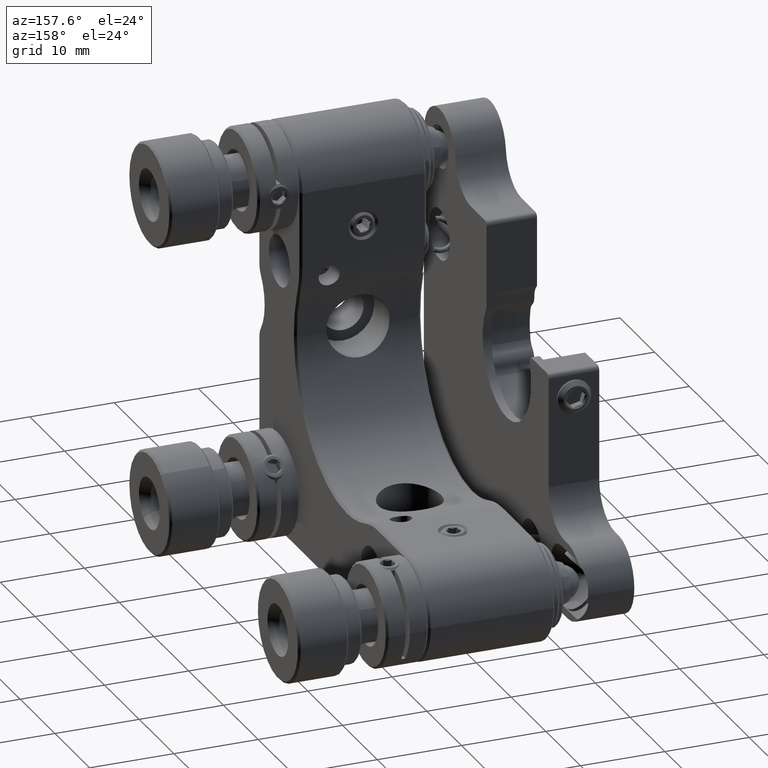
[diagram: clean part render]
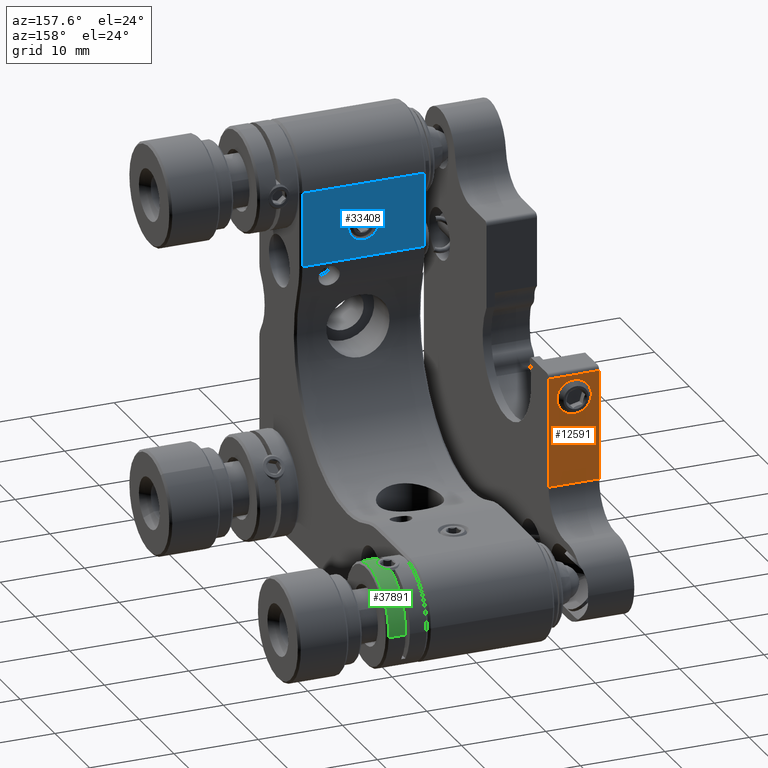
[diagram: same view with three faces highlighted in distinct colors, each labeled with its STEP entity id]
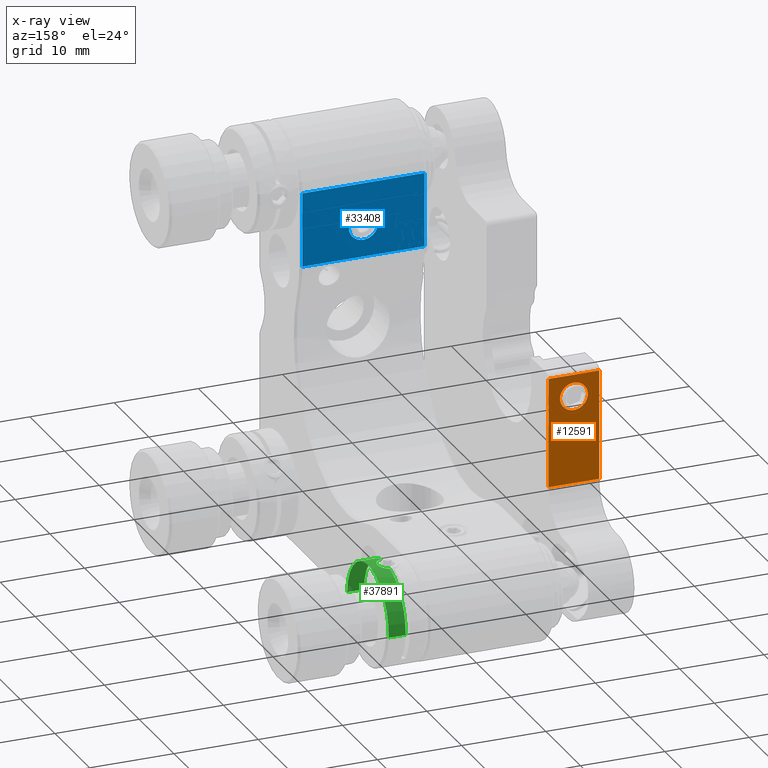
[diagram: x-ray of the same camera — body ghosted, the three highlighted faces saturated]
A machine part, auxiliary view with three faces highlighted in distinct colors.
The next image is the same camera in x-ray (body ghosted, the three faces saturated) — at least one of them is partly hidden behind the body in this view.
Their STEP definitions:

[orange] entity #12591 — the highlighted planar face has unit normal (0, -1, 0).
#287 = VECTOR ( 'NONE', #21377, 1000.000000000000000 ) ;
#1308 = CARTESIAN_POINT ( 'NONE',  ( -14.50000000000000000, 12.89999999999999858, 2.549999999999983391 ) ) ;
#1470 = EDGE_CURVE ( 'NONE', #10336, #3576, #37857, .T. ) ;
#1627 = CARTESIAN_POINT ( 'NONE',  ( -11.50000000000000000, 12.90000000000000036, 6.999999999999988454 ) ) ;
#1797 = DIRECTION ( 'NONE',  ( 1.000000000000000000, -0.0000000000000000000, -0.0000000000000000000 ) ) ;
#1933 = ORIENTED_EDGE ( 'NONE', *, *, #41773, .F. ) ;
#2061 = CIRCLE ( 'NONE', #19376, 1.649999999999998357 ) ;
#2361 = LINE ( 'NONE', #29251, #35845 ) ;
#3576 = VERTEX_POINT ( 'NONE', #28871 ) ;
#3621 = ORIENTED_EDGE ( 'NONE', *, *, #1470, .T. ) ;
#4511 = EDGE_CURVE ( 'NONE', #10336, #15299, #2361, .T. ) ;
#8329 = CARTESIAN_POINT ( 'NONE',  ( -17.50000000000000000, 12.90000000000000036, 6.999999999999988454 ) ) ;
#8748 = VECTOR ( 'NONE', #21770, 1000.000000000000000 ) ;
#9956 = CARTESIAN_POINT ( 'NONE',  ( -14.50000000000000000, 12.89999999999999858, 0.8999999999999849232 ) ) ;
#10336 = VERTEX_POINT ( 'NONE', #29155 ) ;
#11602 = PLANE ( 'NONE',  #21400 ) ;
#12196 = ORIENTED_EDGE ( 'NONE', *, *, #4511, .F. ) ;
#12591 = ADVANCED_FACE ( 'NONE', ( #41539, #41107 ), #11602, .F. ) ;
#14875 = DIRECTION ( 'NONE',  ( 0.0000000000000000000, -1.652117596168388742E-16, -1.000000000000000000 ) ) ;
#15085 = DIRECTION ( 'NONE',  ( 0.0000000000000000000, -1.000000000000000000, 1.652117596168388742E-16 ) ) ;
#15299 = VERTEX_POINT ( 'NONE', #38242 ) ;
#17121 = DIRECTION ( 'NONE',  ( -0.0000000000000000000, 1.000000000000000000, -1.982541115402065110E-16 ) ) ;
#18183 = EDGE_LOOP ( 'NONE', ( #1933, #25839 ) ) ;
#18249 = EDGE_CURVE ( 'NONE', #26513, #15299, #25447, .T. ) ;
#18641 = DIRECTION ( 'NONE',  ( -0.0000000000000000000, 1.652117596168388989E-16, 1.000000000000000000 ) ) ;
#18932 = DIRECTION ( 'NONE',  ( 0.0000000000000000000, 0.0000000000000000000, 1.000000000000000000 ) ) ;
#19376 = AXIS2_PLACEMENT_3D ( 'NONE', #9956, #17121, #20572 ) ;
#20572 = DIRECTION ( 'NONE',  ( 0.0000000000000000000, 0.0000000000000000000, 1.000000000000000000 ) ) ;
#21377 = DIRECTION ( 'NONE',  ( -1.000000000000000000, 0.0000000000000000000, 0.0000000000000000000 ) ) ;
#21400 = AXIS2_PLACEMENT_3D ( 'NONE', #1627, #15085, #14875 ) ;
#21744 = VERTEX_POINT ( 'NONE', #1308 ) ;
#21770 = DIRECTION ( 'NONE',  ( -0.0000000000000000000, 1.652117596168388989E-16, 1.000000000000000000 ) ) ;
#22692 = CARTESIAN_POINT ( 'NONE',  ( -14.50000000000000000, 12.89999999999999858, -0.7500000000000131006 ) ) ;
#23986 = CARTESIAN_POINT ( 'NONE',  ( -17.50000000000000000, 12.89999999999999680, -9.499999999999992895 ) ) ;
#24808 = CARTESIAN_POINT ( 'NONE',  ( -11.50000000000000000, 12.90000000000000036, 3.499999999999989786 ) ) ;
#25429 = AXIS2_PLACEMENT_3D ( 'NONE', #29518, #35835, #18932 ) ;
#25447 = LINE ( 'NONE', #24808, #38824 ) ;
#25839 = ORIENTED_EDGE ( 'NONE', *, *, #32857, .F. ) ;
#26513 = VERTEX_POINT ( 'NONE', #37216 ) ;
#26997 = ORIENTED_EDGE ( 'NONE', *, *, #18249, .T. ) ;
#28185 = ORIENTED_EDGE ( 'NONE', *, *, #35275, .T. ) ;
#28871 = CARTESIAN_POINT ( 'NONE',  ( -17.50000000000000000, 12.89999999999999680, -9.499999999999991118 ) ) ;
#29155 = CARTESIAN_POINT ( 'NONE',  ( -11.50000000000000000, 12.89999999999999680, -9.499999999999991118 ) ) ;
#29251 = CARTESIAN_POINT ( 'NONE',  ( -11.50000000000000000, 12.90000000000000036, 6.999999999999988454 ) ) ;
#29518 = CARTESIAN_POINT ( 'NONE',  ( -14.50000000000000000, 12.89999999999999858, 0.8999999999999849232 ) ) ;
#29830 = VERTEX_POINT ( 'NONE', #22692 ) ;
#32857 = EDGE_CURVE ( 'NONE', #29830, #21744, #2061, .T. ) ;
#35110 = CIRCLE ( 'NONE', #25429, 1.649999999999998357 ) ;
#35212 = LINE ( 'NONE', #8329, #8748 ) ;
#35275 = EDGE_CURVE ( 'NONE', #3576, #26513, #35212, .T. ) ;
#35835 = DIRECTION ( 'NONE',  ( -0.0000000000000000000, 1.000000000000000000, -1.982541115402065110E-16 ) ) ;
#35845 = VECTOR ( 'NONE', #18641, 1000.000000000000000 ) ;
#37216 = CARTESIAN_POINT ( 'NONE',  ( -17.50000000000000000, 12.90000000000000036, 3.499999999999989786 ) ) ;
#37857 = LINE ( 'NONE', #23986, #287 ) ;
#38242 = CARTESIAN_POINT ( 'NONE',  ( -11.50000000000000000, 12.90000000000000036, 3.499999999999989786 ) ) ;
#38765 = EDGE_LOOP ( 'NONE', ( #12196, #3621, #28185, #26997 ) ) ;
#38824 = VECTOR ( 'NONE', #1797, 1000.000000000000000 ) ;
#41107 = FACE_OUTER_BOUND ( 'NONE', #38765, .T. ) ;
#41539 = FACE_BOUND ( 'NONE', #18183, .T. ) ;
#41773 = EDGE_CURVE ( 'NONE', #21744, #29830, #35110, .T. ) ;

[blue] entity #33408 — the highlighted planar face has unit normal (0, -1, -0).
#834 = ORIENTED_EDGE ( 'NONE', *, *, #36471, .F. ) ;
#1588 = CARTESIAN_POINT ( 'NONE',  ( 0.0000000000000000000, -12.49999999999999289, 15.20000000000000462 ) ) ;
#1690 = CARTESIAN_POINT ( 'NONE',  ( -7.500000000000000000, -12.50000000000000355, 29.50000000000000711 ) ) ;
#2007 = VERTEX_POINT ( 'NONE', #4299 ) ;
#4299 = CARTESIAN_POINT ( 'NONE',  ( -7.249999999999992895, -12.50000000000000000, 18.50000000000000711 ) ) ;
#4508 = EDGE_CURVE ( 'NONE', #19003, #27932, #19068, .T. ) ;
#4526 = CARTESIAN_POINT ( 'NONE',  ( -7.500000000000000000, -12.50000000000000000, 18.50000000000000711 ) ) ;
#5355 = VECTOR ( 'NONE', #16045, 1000.000000000000000 ) ;
#6299 = ORIENTED_EDGE ( 'NONE', *, *, #20016, .T. ) ;
#6303 = DIRECTION ( 'NONE',  ( 0.0000000000000000000, 0.0000000000000000000, 1.000000000000000000 ) ) ;
#6364 = EDGE_LOOP ( 'NONE', ( #834, #33124 ) ) ;
#8211 = DIRECTION ( 'NONE',  ( 1.000000000000000000, -0.0000000000000000000, -0.0000000000000000000 ) ) ;
#9205 = CARTESIAN_POINT ( 'NONE',  ( 2.143131898507868051E-16, -12.49999999999999289, 11.70000000000000639 ) ) ;
#9701 = AXIS2_PLACEMENT_3D ( 'NONE', #1690, #14936, #28154 ) ;
#10766 = CARTESIAN_POINT ( 'NONE',  ( -7.500000000000000000, -12.49999999999999645, 9.699999999999986855 ) ) ;
#11201 = LINE ( 'NONE', #10766, #21423 ) ;
#11261 = EDGE_CURVE ( 'NONE', #41929, #2007, #12821, .T. ) ;
#11891 = PLANE ( 'NONE',  #9701 ) ;
#12821 = LINE ( 'NONE', #28877, #21332 ) ;
#14936 = DIRECTION ( 'NONE',  ( 0.0000000000000000000, -1.000000000000000000, -3.174375978451675442E-16 ) ) ;
#15029 = VERTEX_POINT ( 'NONE', #1588 ) ;
#16045 = DIRECTION ( 'NONE',  ( 0.0000000000000000000, 3.174375978451675442E-16, -1.000000000000000000 ) ) ;
#16303 = ORIENTED_EDGE ( 'NONE', *, *, #33933, .T. ) ;
#17592 = ORIENTED_EDGE ( 'NONE', *, *, #4508, .T. ) ;
#19003 = VERTEX_POINT ( 'NONE', #20425 ) ;
#19068 = LINE ( 'NONE', #32511, #5355 ) ;
#19506 = DIRECTION ( 'NONE',  ( -0.0000000000000000000, 1.000000000000000000, -1.028954994759794491E-16 ) ) ;
#20016 = EDGE_CURVE ( 'NONE', #2007, #19003, #24699, .T. ) ;
#20204 = CARTESIAN_POINT ( 'NONE',  ( -7.249999999999992895, -12.49999999999999645, 9.699999999999986855 ) ) ;
#20306 = DIRECTION ( 'NONE',  ( -1.000000000000000000, -0.0000000000000000000, -0.0000000000000000000 ) ) ;
#20425 = CARTESIAN_POINT ( 'NONE',  ( 7.249999999999985789, -12.50000000000000000, 18.50000000000000711 ) ) ;
#21332 = VECTOR ( 'NONE', #32576, 1000.000000000000000 ) ;
#21423 = VECTOR ( 'NONE', #20306, 1000.000000000000000 ) ;
#22364 = CARTESIAN_POINT ( 'NONE',  ( 0.0000000000000000000, -12.49999999999999289, 13.45000000000000462 ) ) ;
#23296 = CIRCLE ( 'NONE', #41329, 1.749999999999999778 ) ;
#24699 = LINE ( 'NONE', #4526, #25735 ) ;
#25624 = EDGE_CURVE ( 'NONE', #37918, #15029, #29768, .T. ) ;
#25735 = VECTOR ( 'NONE', #8211, 1000.000000000000000 ) ;
#27814 = ORIENTED_EDGE ( 'NONE', *, *, #11261, .T. ) ;
#27932 = VERTEX_POINT ( 'NONE', #29946 ) ;
#28154 = DIRECTION ( 'NONE',  ( 0.0000000000000000000, 3.174375978451675442E-16, -1.000000000000000000 ) ) ;
#28585 = FACE_BOUND ( 'NONE', #6364, .T. ) ;
#28877 = CARTESIAN_POINT ( 'NONE',  ( -7.249999999999992895, -12.50000000000000355, 29.50000000000000711 ) ) ;
#29768 = CIRCLE ( 'NONE', #34642, 1.749999999999999778 ) ;
#29946 = CARTESIAN_POINT ( 'NONE',  ( 7.249999999999985789, -12.49999999999999645, 9.699999999999986855 ) ) ;
#32511 = CARTESIAN_POINT ( 'NONE',  ( 7.249999999999985789, -12.49999999999999645, 9.699999999999986855 ) ) ;
#32576 = DIRECTION ( 'NONE',  ( 0.0000000000000000000, -3.174375978451675442E-16, 1.000000000000000000 ) ) ;
#33124 = ORIENTED_EDGE ( 'NONE', *, *, #25624, .F. ) ;
#33159 = DIRECTION ( 'NONE',  ( 0.0000000000000000000, 0.0000000000000000000, 1.000000000000000000 ) ) ;
#33408 = ADVANCED_FACE ( 'NONE', ( #28585, #41817 ), #11891, .F. ) ;
#33933 = EDGE_CURVE ( 'NONE', #27932, #41929, #11201, .T. ) ;
#34642 = AXIS2_PLACEMENT_3D ( 'NONE', #36410, #19506, #33159 ) ;
#35385 = EDGE_LOOP ( 'NONE', ( #16303, #27814, #6299, #17592 ) ) ;
#36410 = CARTESIAN_POINT ( 'NONE',  ( 0.0000000000000000000, -12.49999999999999289, 13.45000000000000462 ) ) ;
#36471 = EDGE_CURVE ( 'NONE', #15029, #37918, #23296, .T. ) ;
#37918 = VERTEX_POINT ( 'NONE', #9205 ) ;
#41329 = AXIS2_PLACEMENT_3D ( 'NONE', #22364, #41893, #6303 ) ;
#41817 = FACE_OUTER_BOUND ( 'NONE', #35385, .T. ) ;
#41893 = DIRECTION ( 'NONE',  ( -0.0000000000000000000, 1.000000000000000000, -1.028954994759794491E-16 ) ) ;
#41929 = VERTEX_POINT ( 'NONE', #20204 ) ;

[green] entity #37891 — the highlighted cylindrical surface (partial cylindrical patch) has radius 6 mm, axis along (1, -0, -0).
#1036 = VERTEX_POINT ( 'NONE', #3101 ) ;
#1340 = AXIS2_PLACEMENT_3D ( 'NONE', #20593, #34047, #33614 ) ;
#2047 = LINE ( 'NONE', #38066, #14202 ) ;
#2916 = DIRECTION ( 'NONE',  ( 1.000000000000000000, -4.437342591868191405E-31, -1.224646799147351482E-16 ) ) ;
#3101 = CARTESIAN_POINT ( 'NONE',  ( 12.24999999999999289, 12.50548878036686595, -18.24341621701169913 ) ) ;
#3586 = DIRECTION ( 'NONE',  ( 0.0000000000000000000, 0.9990852032721875275, -0.04276396383138106327 ) ) ;
#4542 = CARTESIAN_POINT ( 'NONE',  ( 11.12845912252944380, 19.31160096745149346, -12.55359495892243338 ) ) ;
#5252 = ORIENTED_EDGE ( 'NONE', *, *, #26622, .T. ) ;
#5803 = EDGE_CURVE ( 'NONE', #1036, #26242, #37014, .T. ) ;
#6595 = EDGE_CURVE ( 'NONE', #39825, #26242, #2047, .T. ) ;
#6642 = CARTESIAN_POINT ( 'NONE',  ( 10.24999999999999112, 17.52755693530806624, -12.57932820653493522 ) ) ;
#8199 = AXIS2_PLACEMENT_3D ( 'NONE', #39708, #26693, #30159 ) ;
#8828 = ORIENTED_EDGE ( 'NONE', *, *, #6595, .F. ) ;
#10270 = CIRCLE ( 'NONE', #8199, 6.000000000000000888 ) ;
#10865 = LINE ( 'NONE', #24101, #27057 ) ;
#11060 = CARTESIAN_POINT ( 'NONE',  ( 10.52508023223002986, 17.60970982873624635, -12.56594830372557503 ) ) ;
#11477 = CARTESIAN_POINT ( 'NONE',  ( 10.76836441059769989, 17.75780088465613105, -12.54561282781435239 ) ) ;
#13320 = EDGE_CURVE ( 'NONE', #39825, #37781, #14503, .T. ) ;
#13347 = CARTESIAN_POINT ( 'NONE',  ( 12.24999999999999289, 18.49999999999999289, -18.49999999999998224 ) ) ;
#13368 = CARTESIAN_POINT ( 'NONE',  ( 12.24999999999999289, 24.49451121963312161, -18.75658378298826534 ) ) ;
#14202 = VECTOR ( 'NONE', #22430, 1000.000000000000000 ) ;
#14503 = CIRCLE ( 'NONE', #1340, 6.000000000000001776 ) ;
#14959 = CARTESIAN_POINT ( 'NONE',  ( 10.24999999999999112, 17.52755693530806624, -12.57932820653493522 ) ) ;
#15545 = EDGE_CURVE ( 'NONE', #33760, #37781, #41865, .T. ) ;
#15953 = CARTESIAN_POINT ( 'NONE',  ( 10.24999999999999112, 19.97480589288971231, -12.68407809730065594 ) ) ;
#17786 = CARTESIAN_POINT ( 'NONE',  ( 10.39071141842000756, 19.94636568683540290, -12.67686620825096000 ) ) ;
#18494 = EDGE_LOOP ( 'NONE', ( #22937, #5252, #28914, #8828, #26086, #36596 ) ) ;
#18978 = CARTESIAN_POINT ( 'NONE',  ( -9.100000000000003197, 18.49999999999999289, -18.49999999999997868 ) ) ;
#19395 = FACE_OUTER_BOUND ( 'NONE', #18494, .T. ) ;
#20593 = CARTESIAN_POINT ( 'NONE',  ( 10.24999999999999112, 18.49999999999999289, -18.49999999999998224 ) ) ;
#21260 = DIRECTION ( 'NONE',  ( 1.000000000000000000, -4.437342591868191405E-31, -1.224646799147351482E-16 ) ) ;
#21402 = EDGE_CURVE ( 'NONE', #33760, #42064, #10270, .T. ) ;
#22430 = DIRECTION ( 'NONE',  ( 1.000000000000000000, -4.437342591868191405E-31, -1.224646799147351482E-16 ) ) ;
#22676 = AXIS2_PLACEMENT_3D ( 'NONE', #18978, #2916, #29565 ) ;
#22937 = ORIENTED_EDGE ( 'NONE', *, *, #21402, .T. ) ;
#23865 = AXIS2_PLACEMENT_3D ( 'NONE', #13347, #32874, #3586 ) ;
#24101 = CARTESIAN_POINT ( 'NONE',  ( -9.100000000000003197, 12.50548878036686595, -18.24341621701169203 ) ) ;
#26086 = ORIENTED_EDGE ( 'NONE', *, *, #13320, .T. ) ;
#26242 = VERTEX_POINT ( 'NONE', #13368 ) ;
#26622 = EDGE_CURVE ( 'NONE', #42064, #1036, #10865, .T. ) ;
#26693 = DIRECTION ( 'NONE',  ( 1.000000000000000000, -4.437342591868191405E-31, -1.224646799147351482E-16 ) ) ;
#27057 = VECTOR ( 'NONE', #21260, 1000.000000000000000 ) ;
#27543 = CARTESIAN_POINT ( 'NONE',  ( 11.25016883163388215, 18.46878916769270518, -12.49313506746005054 ) ) ;
#27764 = CARTESIAN_POINT ( 'NONE',  ( 11.05812742061445597, 19.43505188033018882, -12.57225422385431735 ) ) ;
#28914 = ORIENTED_EDGE ( 'NONE', *, *, #5803, .T. ) ;
#29565 = DIRECTION ( 'NONE',  ( 0.0000000000000000000, 0.9990852032721875275, -0.04276396383138106327 ) ) ;
#30159 = DIRECTION ( 'NONE',  ( 0.0000000000000000000, -0.9990852032721876386, 0.04276396383137991836 ) ) ;
#30803 = CARTESIAN_POINT ( 'NONE',  ( 11.24991526295638700, 18.90157762636242467, -12.51171263895401076 ) ) ;
#31435 = CARTESIAN_POINT ( 'NONE',  ( 11.22537558535590563, 19.04182613819259373, -12.52297285610210587 ) ) ;
#32634 = CYLINDRICAL_SURFACE ( 'NONE', #22676, 6.000000000000003553 ) ;
#32874 = DIRECTION ( 'NONE',  ( -1.000000000000000000, 4.437342591868191405E-31, 1.224646799147351482E-16 ) ) ;
#33614 = DIRECTION ( 'NONE',  ( 0.0000000000000000000, -0.9990852032721875275, 0.04276396383138107715 ) ) ;
#33760 = VERTEX_POINT ( 'NONE', #6642 ) ;
#34047 = DIRECTION ( 'NONE',  ( 1.000000000000000000, -4.437342591868191405E-31, -1.224646799147351482E-16 ) ) ;
#34259 = CARTESIAN_POINT ( 'NONE',  ( 11.14748082381498584, 18.18470335810425809, -12.50418347430428767 ) ) ;
#36463 = CARTESIAN_POINT ( 'NONE',  ( 10.24999999999999112, 12.50548878036686773, -18.24341621701169558 ) ) ;
#36596 = ORIENTED_EDGE ( 'NONE', *, *, #15545, .F. ) ;
#37014 = CIRCLE ( 'NONE', #23865, 6.000000000000003553 ) ;
#37304 = CARTESIAN_POINT ( 'NONE',  ( 10.38960250453964207, 17.55628120717163654, -12.57461037721818897 ) ) ;
#37522 = CARTESIAN_POINT ( 'NONE',  ( 10.87767375705390016, 17.85322538647672630, -12.53393014247644466 ) ) ;
#37727 = CARTESIAN_POINT ( 'NONE',  ( 10.76905514345796533, 19.74789800972026654, -12.63072302242346012 ) ) ;
#37781 = VERTEX_POINT ( 'NONE', #15953 ) ;
#37891 = ADVANCED_FACE ( 'NONE', ( #19395 ), #32634, .T. ) ;
#37943 = CARTESIAN_POINT ( 'NONE',  ( 10.87685377308227608, 19.65516995984618376, -12.61119075114578258 ) ) ;
#38066 = CARTESIAN_POINT ( 'NONE',  ( -9.100000000000003197, 24.49451121963312161, -18.75658378298826534 ) ) ;
#39708 = CARTESIAN_POINT ( 'NONE',  ( 10.24999999999999112, 18.49999999999999289, -18.49999999999998224 ) ) ;
#39825 = VERTEX_POINT ( 'NONE', #41858 ) ;
#40773 = CARTESIAN_POINT ( 'NONE',  ( 10.52404206932773967, 19.89469199896712581, -12.66386292911219691 ) ) ;
#40991 = CARTESIAN_POINT ( 'NONE',  ( 10.24999999999999112, 19.97480589288971231, -12.68407809730065594 ) ) ;
#41858 = CARTESIAN_POINT ( 'NONE',  ( 10.24999999999999112, 24.49451121963311806, -18.75658378298826889 ) ) ;
#41865 = B_SPLINE_CURVE_WITH_KNOTS ( 'NONE', 3,
 ( #14959, #37304, #11060, #11477, #37522, #34259, #27543, #30803, #31435, #4542, #27764, #37943, #37727, #40773, #17786, #40991 ),
 .UNSPECIFIED., .F., .F.,
 ( 4, 2, 2, 2, 2, 2, 2, 4 ),
 ( 0.006129368390808218742, 0.006556362530846796682, 0.006983356670885373756, 0.007837344950962521831, 0.008264339091001094567, 0.008691333231039669038, 0.009118327371078241775, 0.009545321511116816246 ),
 .UNSPECIFIED. ) ;
#42064 = VERTEX_POINT ( 'NONE', #36463 ) ;